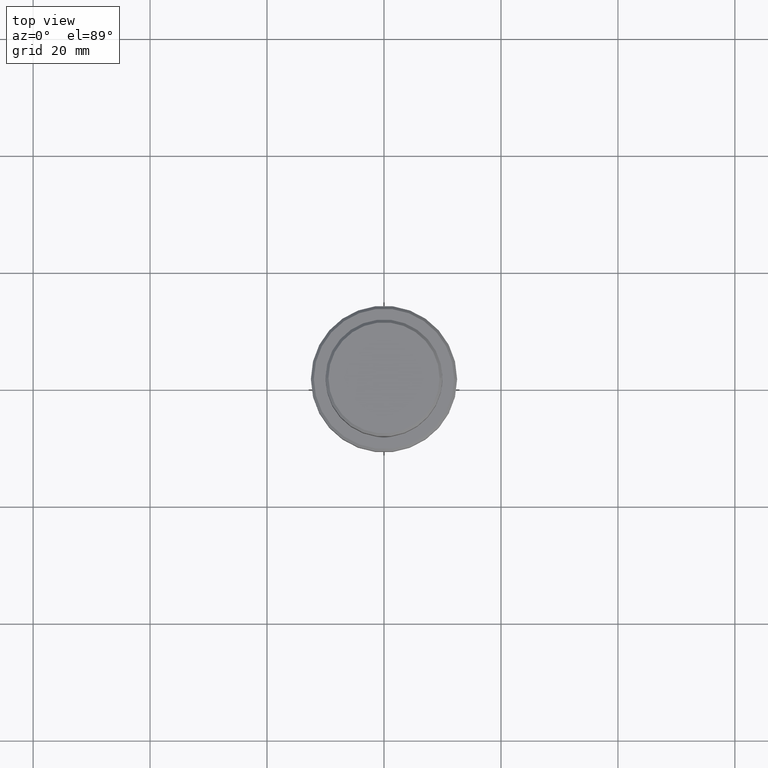
[diagram: clean part render]
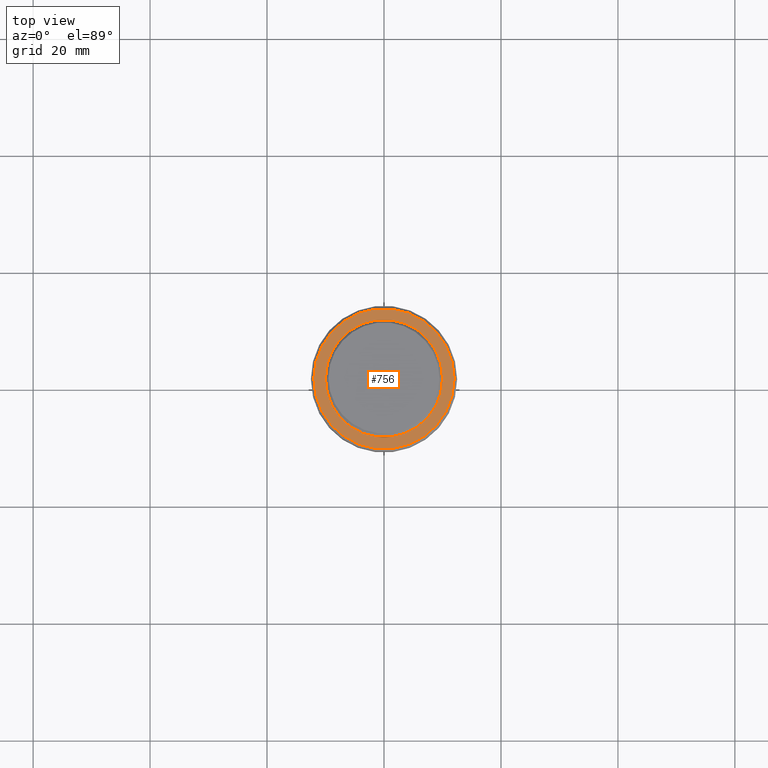
[diagram: same view with one face highlighted and labeled with its STEP entity id]
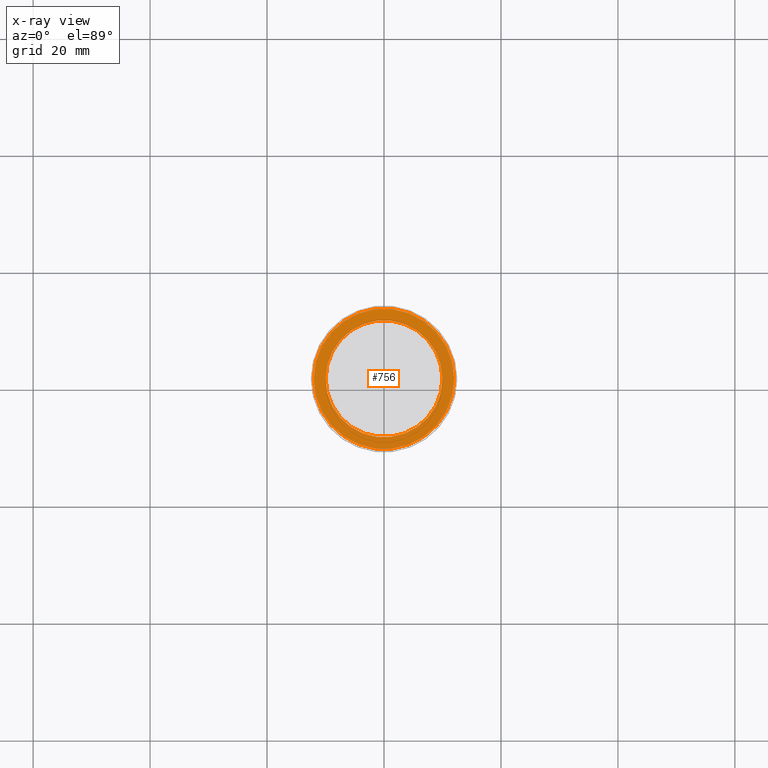
[diagram: x-ray of the same camera — body ghosted, the highlighted face saturated]
A machine part, top view. The second image highlights one B-rep face of the part: STEP entity #756.
The next image is the same camera in x-ray: the body ghosted, the highlighted face saturated — about 0% of this face is hidden behind the body in this view.
In plain terms, the highlighted planar face has unit normal (0, -0, 1).
Its self-contained STEP definition (entity closure, byte-faithful):
#11 = CARTESIAN_POINT ( 'NONE',  ( 0.000000000000000000, 0.000000000000000000, -9.000000000000000000 ) ) ;
#62 = AXIS2_PLACEMENT_3D ( 'NONE', #11, #1325, #99 ) ;
#99 = DIRECTION ( 'NONE',  ( 1.000000000000000000, 0.000000000000000000, 0.000000000000000000 ) ) ;
#109 = CIRCLE ( 'NONE', #606, 9.999999999999992895 ) ;
#138 = DIRECTION ( 'NONE',  ( 0.000000000000000000, 0.000000000000000000, -1.000000000000000000 ) ) ;
#386 = DIRECTION ( 'NONE',  ( 1.000000000000000000, 0.000000000000000000, 0.000000000000000000 ) ) ;
#406 = CIRCLE ( 'NONE', #62, 11.99999999999998224 ) ;
#418 = CARTESIAN_POINT ( 'NONE',  ( 0.000000000000000000, 0.000000000000000000, -9.000000000000000000 ) ) ;
#475 = ORIENTED_EDGE ( 'NONE', *, *, #1285, .T. ) ;
#488 = DIRECTION ( 'NONE',  ( 0.000000000000000000, -0.000000000000000000, 1.000000000000000000 ) ) ;
#493 = CIRCLE ( 'NONE', #838, 11.99999999999998224 ) ;
#521 = PLANE ( 'NONE',  #1295 ) ;
#545 = CARTESIAN_POINT ( 'NONE',  ( 9.999999999999992895, 0.000000000000000000, -9.000000000000000000 ) ) ;
#567 = ORIENTED_EDGE ( 'NONE', *, *, #710, .T. ) ;
#574 = DIRECTION ( 'NONE',  ( 1.000000000000000000, 0.000000000000000000, 0.000000000000000000 ) ) ;
#606 = AXIS2_PLACEMENT_3D ( 'NONE', #881, #1096, #758 ) ;
#628 = DIRECTION ( 'NONE',  ( -0.000000000000000000, -0.000000000000000000, 1.000000000000000000 ) ) ;
#710 = EDGE_CURVE ( 'NONE', #1176, #1331, #1317, .T. ) ;
#756 = ADVANCED_FACE ( 'NONE', ( #936, #1274 ), #521, .T. ) ;
#758 = DIRECTION ( 'NONE',  ( 1.000000000000000000, 0.000000000000000000, 0.000000000000000000 ) ) ;
#824 = VERTEX_POINT ( 'NONE', #1152 ) ;
#838 = AXIS2_PLACEMENT_3D ( 'NONE', #418, #628, #1060 ) ;
#881 = CARTESIAN_POINT ( 'NONE',  ( 0.000000000000000000, 0.000000000000000000, -9.000000000000000000 ) ) ;
#936 = FACE_OUTER_BOUND ( 'NONE', #1133, .T. ) ;
#941 = CARTESIAN_POINT ( 'NONE',  ( -9.999999999999992895, 1.224646799147352468E-15, -9.000000000000000000 ) ) ;
#986 = EDGE_LOOP ( 'NONE', ( #475, #567 ) ) ;
#1054 = EDGE_CURVE ( 'NONE', #1272, #824, #406, .T. ) ;
#1060 = DIRECTION ( 'NONE',  ( 1.000000000000000000, 0.000000000000000000, 0.000000000000000000 ) ) ;
#1086 = AXIS2_PLACEMENT_3D ( 'NONE', #1232, #138, #574 ) ;
#1096 = DIRECTION ( 'NONE',  ( 0.000000000000000000, 0.000000000000000000, -1.000000000000000000 ) ) ;
#1097 = ORIENTED_EDGE ( 'NONE', *, *, #1054, .T. ) ;
#1117 = EDGE_CURVE ( 'NONE', #824, #1272, #493, .T. ) ;
#1133 = EDGE_LOOP ( 'NONE', ( #1097, #1167 ) ) ;
#1152 = CARTESIAN_POINT ( 'NONE',  ( 11.99999999999998224, 1.500192328955506748E-15, -9.000000000000000000 ) ) ;
#1167 = ORIENTED_EDGE ( 'NONE', *, *, #1117, .T. ) ;
#1176 = VERTEX_POINT ( 'NONE', #941 ) ;
#1194 = CARTESIAN_POINT ( 'NONE',  ( -11.99999999999998224, 0.000000000000000000, -9.000000000000000000 ) ) ;
#1232 = CARTESIAN_POINT ( 'NONE',  ( 0.000000000000000000, 0.000000000000000000, -9.000000000000000000 ) ) ;
#1272 = VERTEX_POINT ( 'NONE', #1194 ) ;
#1274 = FACE_BOUND ( 'NONE', #986, .T. ) ;
#1285 = EDGE_CURVE ( 'NONE', #1331, #1176, #109, .T. ) ;
#1295 = AXIS2_PLACEMENT_3D ( 'NONE', #1388, #488, #386 ) ;
#1317 = CIRCLE ( 'NONE', #1086, 9.999999999999992895 ) ;
#1325 = DIRECTION ( 'NONE',  ( -0.000000000000000000, -0.000000000000000000, 1.000000000000000000 ) ) ;
#1331 = VERTEX_POINT ( 'NONE', #545 ) ;
#1388 = CARTESIAN_POINT ( 'NONE',  ( 0.000000000000000000, 9.499999999999992895, -9.000000000000000000 ) ) ;